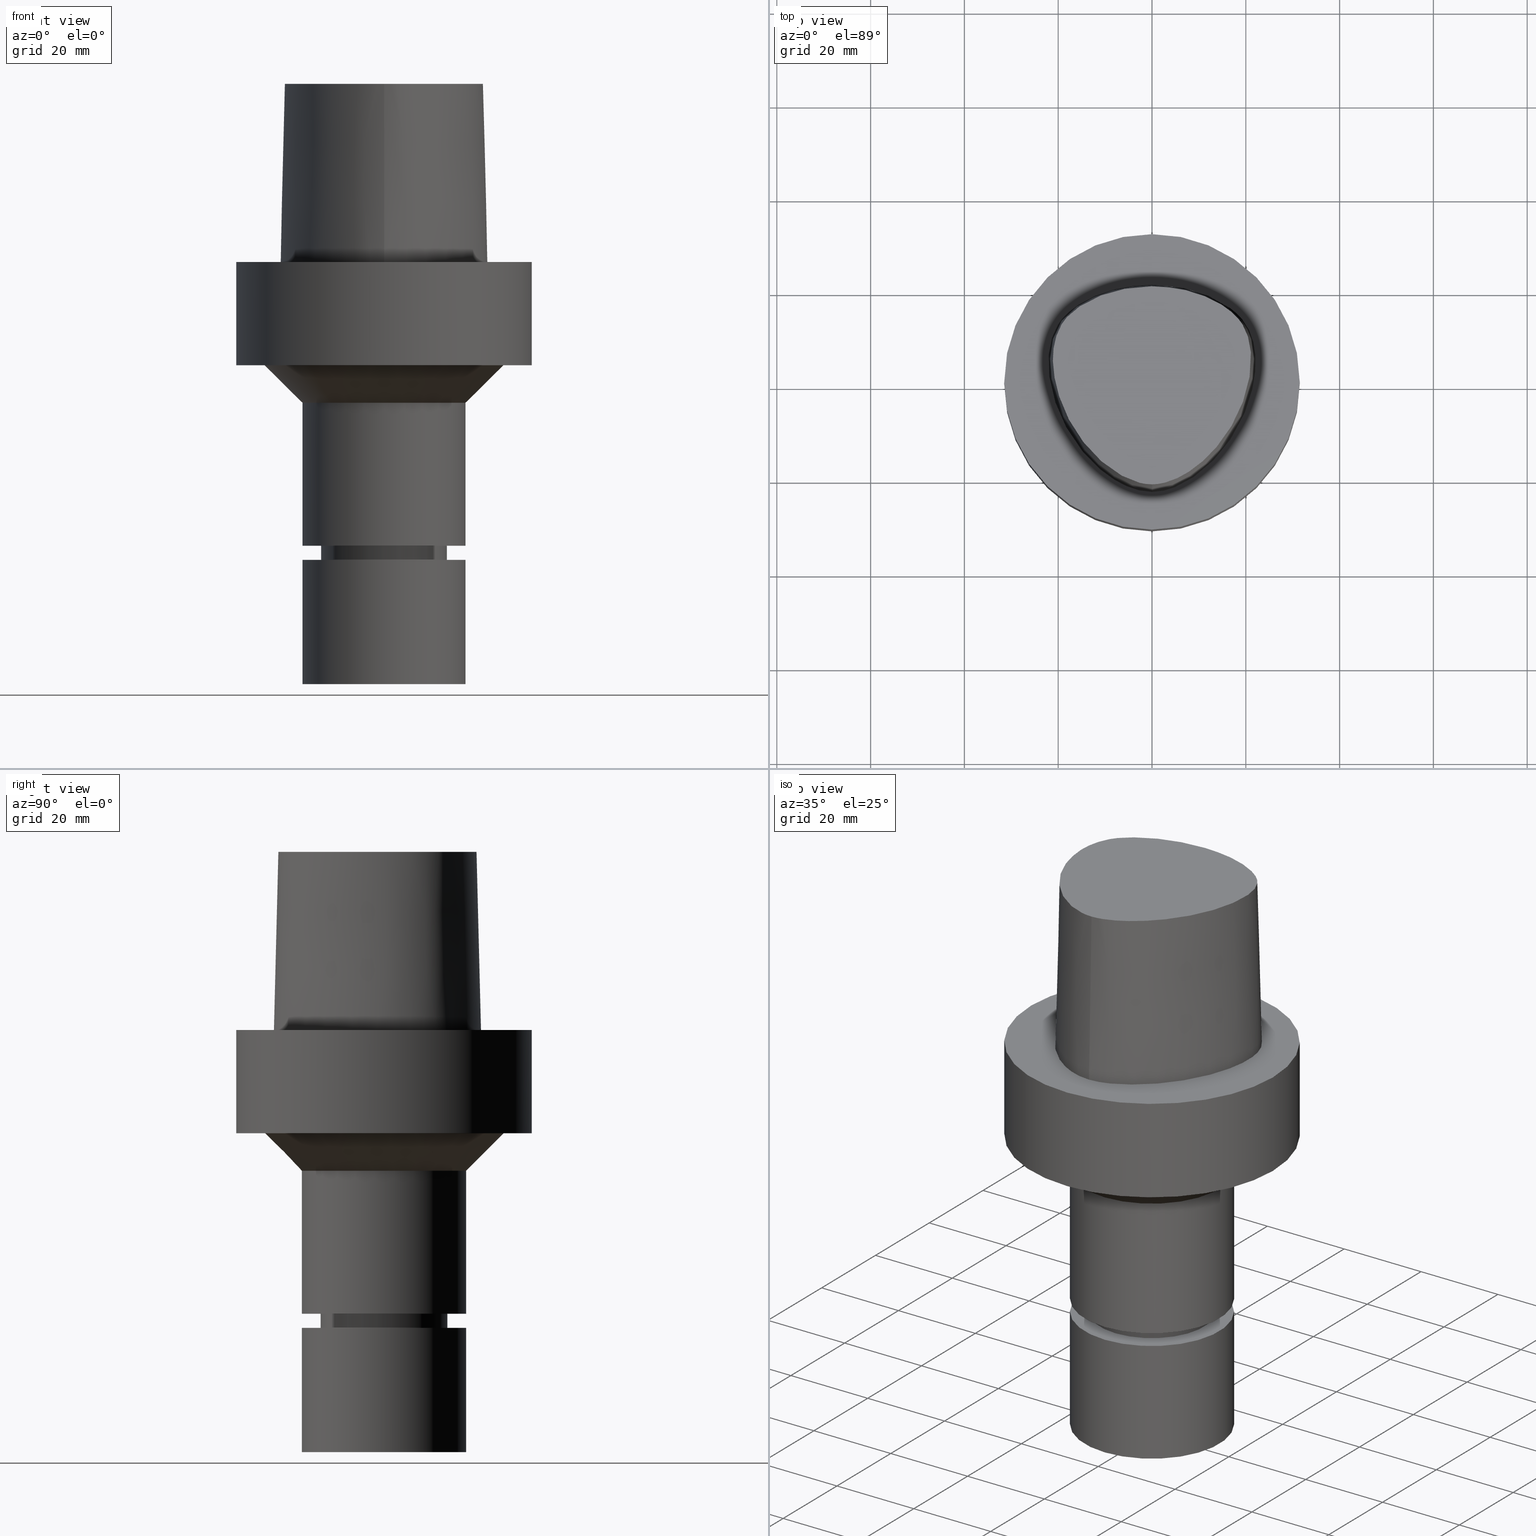
[diagram: canonical four-view strip — front | top / right | iso, engineering-drawing reading convention]
A machine part, canonical four-view strip (front | top / right | iso — engineering-drawing reading convention). The complete STEP part file that produces these views, byte-faithful:
ISO-10303-21;
HEADER;
FILE_DESCRIPTION((''),'1');
FILE_NAME('V:/90_\X2\53D65F9730C730FC30BF\X0\/00_\X2\6DE18DEF30C730FC30BF\X0\/ALL/CAPTO-BKUS\X2\52A05DE556F3\X0\_201801/C6-MEGAER/C6-MEGAER20-90NL.stp','2018-02-01T08:02:23',(''),(''),'Spatial Interop R21 SP3','Kubotek KeyCreator 2011 V10.0.2 (22737)',' ');
FILE_SCHEMA(('automotive_design'));
ENDSEC;
DATA;
#1=MECHANICAL_DESIGN_GEOMETRIC_PRESENTATION_REPRESENTATION(' ',(#14,#15,#16,#17,#18,#19,#20,#21,#22,#23,#24,#25,#26,#27,#28,#29,#30,#31,#32,#33,#34,#35,#36,#37,#38,#39,#40,#41,#42,#43,#44,#45,#46,#47,#48,#49,#50,#51,#52,#53),#10);
#2=PRODUCT_DEFINITION_CONTEXT('',#54,'design');
#3=APPLICATION_PROTOCOL_DEFINITION('INTERNATIONAL STANDARD','automotive_design',1994,#54);
#4=PRODUCT_CATEGORY_RELATIONSHIP('NONE','NONE',#55,#56);
#5=SHAPE_DEFINITION_REPRESENTATION(#57,#58);
#6=PRODUCT_DEFINITION_CONTEXT('',#59,'design');
#7=APPLICATION_PROTOCOL_DEFINITION('INTERNATIONAL STANDARD','automotive_design',1994,#59);
#8=PRODUCT_CATEGORY_RELATIONSHIP('NONE','NONE',#60,#61);
#9=SHAPE_DEFINITION_REPRESENTATION(#62,#63);
#10= (GEOMETRIC_REPRESENTATION_CONTEXT(3)GLOBAL_UNCERTAINTY_ASSIGNED_CONTEXT((#66))GLOBAL_UNIT_ASSIGNED_CONTEXT((#68,#69,#70))REPRESENTATION_CONTEXT('NONE','WORKSPACE'));
#14=STYLED_ITEM('',(#72,#73),#74);
#15=STYLED_ITEM('',(#75),#76);
#16=STYLED_ITEM('',(#77),#78);
#17=STYLED_ITEM('',(#79,#80),#81);
#18=STYLED_ITEM('',(#82),#83);
#19=STYLED_ITEM('',(#84,#85),#86);
#20=STYLED_ITEM('',(#87,#88),#89);
#21=STYLED_ITEM('',(#90),#91);
#22=STYLED_ITEM('',(#92),#93);
#23=STYLED_ITEM('',(#94,#95),#96);
#24=STYLED_ITEM('',(#97),#98);
#25=STYLED_ITEM('',(#99,#100),#101);
#26=STYLED_ITEM('',(#102,#103),#104);
#27=STYLED_ITEM('',(#105,#106),#107);
#28=STYLED_ITEM('',(#108),#109);
#29=STYLED_ITEM('',(#110),#111);
#30=STYLED_ITEM('',(#112),#113);
#31=STYLED_ITEM('',(#114,#115),#116);
#32=STYLED_ITEM('',(#117),#118);
#33=STYLED_ITEM('',(#119),#120);
#34=STYLED_ITEM('',(#121),#122);
#35=STYLED_ITEM('',(#123,#124),#125);
#36=STYLED_ITEM('',(#126),#127);
#37=STYLED_ITEM('',(#128,#129),#130);
#38=STYLED_ITEM('',(#131,#132),#133);
#39=STYLED_ITEM('',(#134),#135);
#40=STYLED_ITEM('',(#136),#137);
#41=STYLED_ITEM('',(#138,#139),#140);
#42=STYLED_ITEM('',(#141),#142);
#43=STYLED_ITEM('',(#143),#144);
#44=STYLED_ITEM('',(#145),#146);
#45=STYLED_ITEM('',(#147),#148);
#46=STYLED_ITEM('',(#149),#150);
#47=STYLED_ITEM('',(#151,#152),#153);
#48=STYLED_ITEM('',(#154,#155),#156);
#49=STYLED_ITEM('',(#157,#158),#159);
#50=STYLED_ITEM('',(#160,#161),#162);
#51=STYLED_ITEM('',(#163,#164),#165);
#52=STYLED_ITEM('',(#166,#167),#168);
#53=STYLED_ITEM('',(#169,#170),#171);
#54=APPLICATION_CONTEXT(' ');
#55=PRODUCT_CATEGORY('part','NONE');
#56=PRODUCT_RELATED_PRODUCT_CATEGORY('detail',' ',(#172));
#57=PRODUCT_DEFINITION_SHAPE('NONE','NONE',#173);
#58=ADVANCED_BREP_SHAPE_REPRESENTATION('Unnamed[1]',(#140,#174),#10);
#59=APPLICATION_CONTEXT(' ');
#60=PRODUCT_CATEGORY('part','NONE');
#61=PRODUCT_RELATED_PRODUCT_CATEGORY('detail',' ',(#175));
#62=PRODUCT_DEFINITION_SHAPE('NONE','NONE',#176);
#63=ADVANCED_BREP_SHAPE_REPRESENTATION('Unnamed[1]',(#130,#177),#10);
#66=UNCERTAINTY_MEASURE_WITH_UNIT(LENGTH_MEASURE(1.0E-006),#68,'','');
#68= (CONVERSION_BASED_UNIT('MILLIMETRE',#180)LENGTH_UNIT()NAMED_UNIT(#183));
#69= (NAMED_UNIT(#185)PLANE_ANGLE_UNIT()SI_UNIT($,.RADIAN.));
#70= (NAMED_UNIT(#185)SOLID_ANGLE_UNIT()SI_UNIT($,.STERADIAN.));
#72=PRESENTATION_STYLE_ASSIGNMENT((#191));
#73=PRESENTATION_STYLE_ASSIGNMENT((#192));
#74=ADVANCED_FACE('Unnamed[1]',(#193,#194),#195,.T.);
#75=PRESENTATION_STYLE_ASSIGNMENT((#196));
#76=EDGE_CURVE('Unnamed[1]',#197,#197,#198,.T.);
#77=PRESENTATION_STYLE_ASSIGNMENT((#199));
#78=EDGE_CURVE('Unnamed[1]',#200,#200,#201,.T.);
#79=PRESENTATION_STYLE_ASSIGNMENT((#202));
#80=PRESENTATION_STYLE_ASSIGNMENT((#203));
#81=ADVANCED_FACE('Unnamed[1]',(#204,#205),#206,.T.);
#82=PRESENTATION_STYLE_ASSIGNMENT((#207));
#83=EDGE_CURVE('Unnamed[1]',#208,#208,#209,.T.);
#84=PRESENTATION_STYLE_ASSIGNMENT((#210));
#85=PRESENTATION_STYLE_ASSIGNMENT((#211));
#86=ADVANCED_FACE('Unnamed[1]',(#212),#213,.T.);
#87=PRESENTATION_STYLE_ASSIGNMENT((#214));
#88=PRESENTATION_STYLE_ASSIGNMENT((#215));
#89=ADVANCED_FACE('Unnamed[1]',(#216,#217),#218,.T.);
#90=PRESENTATION_STYLE_ASSIGNMENT((#219));
#91=EDGE_CURVE('Unnamed[1]',#220,#220,#221,.T.);
#92=PRESENTATION_STYLE_ASSIGNMENT((#222));
#93=EDGE_CURVE('Unnamed[1]',#223,#223,#224,.T.);
#94=PRESENTATION_STYLE_ASSIGNMENT((#225));
#95=PRESENTATION_STYLE_ASSIGNMENT((#226));
#96=ADVANCED_FACE('Unnamed[1]',(#227,#228),#229,.T.);
#97=PRESENTATION_STYLE_ASSIGNMENT((#230));
#98=EDGE_CURVE('Unnamed[1]',#231,#232,#233,.T.);
#99=PRESENTATION_STYLE_ASSIGNMENT((#234));
#100=PRESENTATION_STYLE_ASSIGNMENT((#235));
#101=ADVANCED_FACE('Unnamed[1]',(#236,#237),#238,.T.);
#102=PRESENTATION_STYLE_ASSIGNMENT((#239));
#103=PRESENTATION_STYLE_ASSIGNMENT((#240));
#104=ADVANCED_FACE('Unnamed[1]',(#241,#242),#243,.T.);
#105=PRESENTATION_STYLE_ASSIGNMENT((#244));
#106=PRESENTATION_STYLE_ASSIGNMENT((#245));
#107=ADVANCED_FACE('Unnamed[1]',(#246),#247,.T.);
#108=PRESENTATION_STYLE_ASSIGNMENT((#248));
#109=EDGE_CURVE('Unnamed[1]',#249,#250,#251,.T.);
#110=PRESENTATION_STYLE_ASSIGNMENT((#252));
#111=EDGE_CURVE('Unnamed[1]',#253,#253,#254,.T.);
#112=PRESENTATION_STYLE_ASSIGNMENT((#255));
#113=EDGE_CURVE('Unnamed[1]',#250,#249,#256,.T.);
#114=PRESENTATION_STYLE_ASSIGNMENT((#257));
#115=PRESENTATION_STYLE_ASSIGNMENT((#258));
#116=ADVANCED_FACE('Unnamed[1]',(#259),#260,.T.);
#117=PRESENTATION_STYLE_ASSIGNMENT((#261));
#118=EDGE_CURVE('Unnamed[1]',#262,#262,#263,.T.);
#119=PRESENTATION_STYLE_ASSIGNMENT((#264));
#120=EDGE_CURVE('Unnamed[1]',#265,#265,#266,.T.);
#121=PRESENTATION_STYLE_ASSIGNMENT((#267));
#122=EDGE_CURVE('Unnamed[1]',#249,#268,#269,.T.);
#123=PRESENTATION_STYLE_ASSIGNMENT((#270));
#124=PRESENTATION_STYLE_ASSIGNMENT((#271));
#125=ADVANCED_FACE('Unnamed[1]',(#272),#273,.T.);
#126=PRESENTATION_STYLE_ASSIGNMENT((#274));
#127=EDGE_CURVE('Unnamed[1]',#275,#275,#276,.T.);
#128=PRESENTATION_STYLE_ASSIGNMENT((#277));
#129=PRESENTATION_STYLE_ASSIGNMENT((#278));
#130=MANIFOLD_SOLID_BREP('Unnamed[1]',#279);
#131=PRESENTATION_STYLE_ASSIGNMENT((#280));
#132=PRESENTATION_STYLE_ASSIGNMENT((#281));
#133=ADVANCED_FACE('Unnamed[1]',(#282,#283),#284,.T.);
#134=PRESENTATION_STYLE_ASSIGNMENT((#285));
#135=EDGE_CURVE('Unnamed[1]',#232,#268,#286,.T.);
#136=PRESENTATION_STYLE_ASSIGNMENT((#287));
#137=EDGE_CURVE('Unnamed[1]',#288,#288,#289,.T.);
#138=PRESENTATION_STYLE_ASSIGNMENT((#290));
#139=PRESENTATION_STYLE_ASSIGNMENT((#291));
#140=MANIFOLD_SOLID_BREP('Unnamed[1]',#292);
#141=PRESENTATION_STYLE_ASSIGNMENT((#293));
#142=EDGE_CURVE('Unnamed[1]',#249,#232,#294,.T.);
#143=PRESENTATION_STYLE_ASSIGNMENT((#295));
#144=EDGE_CURVE('Unnamed[1]',#268,#231,#296,.T.);
#145=PRESENTATION_STYLE_ASSIGNMENT((#297));
#146=EDGE_CURVE('Unnamed[1]',#298,#298,#299,.T.);
#147=PRESENTATION_STYLE_ASSIGNMENT((#300));
#148=EDGE_CURVE('Unnamed[1]',#250,#231,#301,.T.);
#149=PRESENTATION_STYLE_ASSIGNMENT((#302));
#150=EDGE_CURVE('Unnamed[1]',#303,#303,#304,.T.);
#151=PRESENTATION_STYLE_ASSIGNMENT((#305));
#152=PRESENTATION_STYLE_ASSIGNMENT((#306));
#153=ADVANCED_FACE('Unnamed[1]',(#307,#308),#309,.T.);
#154=PRESENTATION_STYLE_ASSIGNMENT((#310));
#155=PRESENTATION_STYLE_ASSIGNMENT((#311));
#156=ADVANCED_FACE('Unnamed[1]',(#312),#313,.T.);
#157=PRESENTATION_STYLE_ASSIGNMENT((#314));
#158=PRESENTATION_STYLE_ASSIGNMENT((#315));
#159=ADVANCED_FACE('Unnamed[1]',(#316,#317),#318,.T.);
#160=PRESENTATION_STYLE_ASSIGNMENT((#319));
#161=PRESENTATION_STYLE_ASSIGNMENT((#320));
#162=ADVANCED_FACE('Unnamed[1]',(#321),#322,.T.);
#163=PRESENTATION_STYLE_ASSIGNMENT((#323));
#164=PRESENTATION_STYLE_ASSIGNMENT((#324));
#165=ADVANCED_FACE('Unnamed[1]',(#325,#326),#327,.T.);
#166=PRESENTATION_STYLE_ASSIGNMENT((#328));
#167=PRESENTATION_STYLE_ASSIGNMENT((#329));
#168=ADVANCED_FACE('Unnamed[1]',(#330,#331),#332,.T.);
#169=PRESENTATION_STYLE_ASSIGNMENT((#333));
#170=PRESENTATION_STYLE_ASSIGNMENT((#334));
#171=ADVANCED_FACE('Unnamed[1]',(#335),#336,.T.);
#172=PRODUCT('Unnamed[1]','Unnamed[1]','PART-Unnamed[1]-DESC',(#337));
#173=PRODUCT_DEFINITION('NONE','NONE',#338,#2);
#174=AXIS2_PLACEMENT_3D('',#339,#340,#341);
#175=PRODUCT('Unnamed[1]','Unnamed[1]','PART-Unnamed[1]-DESC',(#342));
#176=PRODUCT_DEFINITION('NONE','NONE',#343,#6);
#177=AXIS2_PLACEMENT_3D('',#344,#345,#346);
#180=LENGTH_MEASURE_WITH_UNIT(LENGTH_MEASURE(1.0),#347);
#183=DIMENSIONAL_EXPONENTS(1.0,0.0,0.0,0.0,0.0,0.0,0.0);
#185=DIMENSIONAL_EXPONENTS(0.0,0.0,0.0,0.0,0.0,0.0,0.0);
#191=SURFACE_STYLE_USAGE(.BOTH.,#348);
#192=CURVE_STYLE('',#349,POSITIVE_LENGTH_MEASURE(1000.0),#350);
#193=FACE_BOUND('',#351,.T.);
#194=FACE_BOUND('',#352,.T.);
#195=CYLINDRICAL_SURFACE('',#353,13.4999999999956);
#196=CURVE_STYLE('',#354,POSITIVE_LENGTH_MEASURE(1000.0),#355);
#197=VERTEX_POINT('',#356);
#198=CIRCLE('',#357,12.4999999999998);
#199=CURVE_STYLE('',#358,POSITIVE_LENGTH_MEASURE(1000.0),#359);
#200=VERTEX_POINT('',#360);
#201=CIRCLE('',#361,17.5);
#202=SURFACE_STYLE_USAGE(.BOTH.,#362);
#203=CURVE_STYLE('',#363,POSITIVE_LENGTH_MEASURE(1000.0),#364);
#204=FACE_BOUND('',#365,.T.);
#205=FACE_BOUND('',#366,.T.);
#206=CYLINDRICAL_SURFACE('',#367,12.4999999999999);
#207=CURVE_STYLE('',#368,POSITIVE_LENGTH_MEASURE(1000.0),#369);
#208=VERTEX_POINT('',#370);
#209=CIRCLE('',#371,17.5);
#210=SURFACE_STYLE_USAGE(.BOTH.,#372);
#211=CURVE_STYLE('',#373,POSITIVE_LENGTH_MEASURE(1000.0),#374);
#212=FACE_OUTER_BOUND('',#375,.T.);
#213=PLANE('',#376);
#214=SURFACE_STYLE_USAGE(.BOTH.,#377);
#215=CURVE_STYLE('',#378,POSITIVE_LENGTH_MEASURE(1000.0),#379);
#216=FACE_BOUND('',#380,.T.);
#217=FACE_BOUND('',#381,.T.);
#218=CYLINDRICAL_SURFACE('',#382,31.5);
#219=CURVE_STYLE('',#383,POSITIVE_LENGTH_MEASURE(1000.0),#384);
#220=VERTEX_POINT('',#385);
#221=CIRCLE('',#386,11.3999999999978);
#222=CURVE_STYLE('',#387,POSITIVE_LENGTH_MEASURE(1000.0),#388);
#223=VERTEX_POINT('',#389);
#224=CIRCLE('',#390,17.4999999999996);
#225=SURFACE_STYLE_USAGE(.BOTH.,#391);
#226=CURVE_STYLE('',#392,POSITIVE_LENGTH_MEASURE(1000.0),#393);
#227=FACE_BOUND('',#394,.T.);
#228=FACE_BOUND('',#395,.T.);
#229=CONICAL_SURFACE('',#396,13.0000000000002,1.04719755119483);
#230=CURVE_STYLE('',#397,POSITIVE_LENGTH_MEASURE(1000.0),#398);
#231=VERTEX_POINT('',#399);
#232=VERTEX_POINT('',#400);
#233=B_SPLINE_CURVE_WITH_KNOTS('',3,(#401,#402,#403,#404,#405,#406,#407,#408,#409,#410,#411,#412,#413,#414,#415,#416,#417,#418),.UNSPECIFIED.,.F.,.F.,(4,1,1,1,1,1,1,1,1,2,1,1,1,1,4),(-6.6151339308743,-6.20168806019465,-5.78824218951501,-5.37479631883537,-4.96135044815572,-4.13445870679644,-3.30756696543715,-2.89412109475751,-2.48067522407786,-2.06722935339822,-1.65378348271857,-1.24033761203893,-0.826891741359287,-0.413445870679644,0.0),.UNSPECIFIED.);
#234=SURFACE_STYLE_USAGE(.BOTH.,#419);
#235=CURVE_STYLE('',#420,POSITIVE_LENGTH_MEASURE(1000.0),#421);
#236=FACE_BOUND('',#422,.T.);
#237=FACE_BOUND('',#423,.T.);
#238=CONICAL_SURFACE('',#424,11.9499999999988,0.523598775598659);
#239=SURFACE_STYLE_USAGE(.BOTH.,#425);
#240=CURVE_STYLE('',#426,POSITIVE_LENGTH_MEASURE(1000.0),#427);
#241=FACE_BOUND('',#428,.T.);
#242=FACE_OUTER_BOUND('',#429,.T.);
#243=PLANE('',#430);
#244=SURFACE_STYLE_USAGE(.BOTH.,#431);
#245=CURVE_STYLE('',#432,POSITIVE_LENGTH_MEASURE(1000.0),#433);
#246=FACE_OUTER_BOUND('',#434,.T.);
#247=B_SPLINE_SURFACE_WITH_KNOTS('',3,3,((#435,#436,#437,#438),(#439,#440,#441,#442),(#443,#444,#445,#446),(#447,#448,#449,#450),(#451,#452,#453,#454),(#455,#456,#457,#458),(#459,#460,#461,#462),(#463,#464,#465,#466),(#467,#468,#469,#470),(#471,#472,#473,#474),(#475,#476,#477,#478),(#479,#480,#481,#482),(#483,#484,#485,#486),(#487,#488,#489,#490),(#491,#492,#493,#494),(#495,#496,#497,#498),(#499,#500,#501,#502),(#503,#504,#505,#506)),.UNSPECIFIED.,.F.,.F.,.F.,(4,1,1,1,1,1,1,1,1,2,1,1,1,1,4),(4,4),(-6.6151339308743,-6.20168806019465,-5.78824218951501,-5.37479631883537,-4.96135044815572,-4.13445870679644,-3.30756696543715,-2.89412109475751,-2.48067522407786,-2.06722935339822,-1.65378348271857,-1.24033761203893,-0.826891741359287,-0.413445870679644,0.0),(-3.8,0.0),.UNSPECIFIED.);
#248=CURVE_STYLE('',#507,POSITIVE_LENGTH_MEASURE(1000.0),#508);
#249=VERTEX_POINT('',#509);
#250=VERTEX_POINT('',#510);
#251=B_SPLINE_CURVE_WITH_KNOTS('',3,(#511,#512,#513,#514,#515,#516,#517,#518,#519,#520,#521,#522,#523,#524,#525,#526),.UNSPECIFIED.,.F.,.F.,(4,1,1,1,1,1,1,1,1,1,1,1,1,4),(0.0,0.447924670568964,0.9388024242536,1.50591409090711,2.07314340012323,2.72424957442464,3.2253501842849,3.80982102049476,4.34867996267067,4.85900173381144,5.37972031856977,6.03459825488646,6.61113557741484,6.61513393087395),.UNSPECIFIED.);
#252=CURVE_STYLE('',#527,POSITIVE_LENGTH_MEASURE(1000.0),#528);
#253=VERTEX_POINT('',#529);
#254=CIRCLE('',#530,17.4999999999998);
#255=CURVE_STYLE('',#531,POSITIVE_LENGTH_MEASURE(1000.0),#532);
#256=B_SPLINE_CURVE_WITH_KNOTS('',3,(#533,#534,#535,#536,#537,#538,#539,#540,#541,#542,#543,#544,#545,#546,#547,#548),.UNSPECIFIED.,.F.,.F.,(4,1,1,1,1,1,1,1,1,1,1,1,1,4),(6.61513393087476,6.99917207152274,7.48193246986995,7.96289324787093,8.45540287038584,9.10291653679981,9.67129810936083,10.1618749681153,10.6358867802489,11.1080734988593,11.6043706019633,12.09451993853,12.6985979284494,13.2302678617486),.UNSPECIFIED.);
#257=SURFACE_STYLE_USAGE(.BOTH.,#549);
#258=CURVE_STYLE('',#550,POSITIVE_LENGTH_MEASURE(1000.0),#551);
#259=FACE_OUTER_BOUND('',#552,.T.);
#260=PLANE('',#553);
#261=CURVE_STYLE('',#554,POSITIVE_LENGTH_MEASURE(1000.0),#555);
#262=VERTEX_POINT('',#556);
#263=CIRCLE('',#557,25.4999999999996);
#264=CURVE_STYLE('',#558,POSITIVE_LENGTH_MEASURE(1000.0),#559);
#265=VERTEX_POINT('',#560);
#266=CIRCLE('',#561,13.5000000000005);
#267=CURVE_STYLE('',#562,POSITIVE_LENGTH_MEASURE(1000.0),#563);
#268=VERTEX_POINT('',#564);
#269=LINE('',#565,#566);
#270=SURFACE_STYLE_USAGE(.BOTH.,#567);
#271=CURVE_STYLE('',#568,POSITIVE_LENGTH_MEASURE(1000.0),#569);
#272=FACE_OUTER_BOUND('',#570,.T.);
#273=CONICAL_SURFACE('',#571,1.0,0.0249931148600041);
#274=CURVE_STYLE('',#572,POSITIVE_LENGTH_MEASURE(1000.0),#573);
#275=VERTEX_POINT('',#574);
#276=CIRCLE('',#575,31.5);
#277=SURFACE_STYLE_USAGE(.BOTH.,#576);
#278=CURVE_STYLE('',#577,POSITIVE_LENGTH_MEASURE(1000.0),#578);
#279=CLOSED_SHELL('',(#86,#171,#133));
#280=SURFACE_STYLE_USAGE(.BOTH.,#579);
#281=CURVE_STYLE('',#580,POSITIVE_LENGTH_MEASURE(1000.0),#581);
#282=FACE_BOUND('',#582,.T.);
#283=FACE_BOUND('',#583,.T.);
#284=CYLINDRICAL_SURFACE('',#584,17.5);
#285=CURVE_STYLE('',#585,POSITIVE_LENGTH_MEASURE(1000.0),#586);
#286=CIRCLE('',#587,0.949936168436318);
#287=CURVE_STYLE('',#588,POSITIVE_LENGTH_MEASURE(1000.0),#589);
#288=VERTEX_POINT('',#590);
#289=CIRCLE('',#591,13.4999999999908);
#290=SURFACE_STYLE_USAGE(.BOTH.,#592);
#291=CURVE_STYLE('',#593,POSITIVE_LENGTH_MEASURE(1000.0),#594);
#292=CLOSED_SHELL('',(#162,#107,#125,#156,#153,#89,#165,#159,#168,#104,#74,#96,#81,#101,#116));
#293=CURVE_STYLE('',#595,POSITIVE_LENGTH_MEASURE(1000.0),#596);
#294=LINE('',#597,#598);
#295=CURVE_STYLE('',#599,POSITIVE_LENGTH_MEASURE(1000.0),#600);
#296=B_SPLINE_CURVE_WITH_KNOTS('',3,(#601,#602,#603,#604,#605,#606,#607,#608,#609,#610,#611,#612,#613,#614,#615,#616,#617),.UNSPECIFIED.,.F.,.F.,(4,1,1,1,1,1,1,1,1,1,1,1,1,1,4),(-13.2302678617486,-12.816821991069,-12.4033761203893,-11.9899302497097,-11.57648437903,-11.1630385083504,-10.9563155730106,-10.7495926376707,-10.3361467669911,-9.92270089631145,-9.09580915495216,-8.26891741359287,-7.44202567223358,-7.02857980155394,-6.6151339308743),.UNSPECIFIED.);
#297=CURVE_STYLE('',#618,POSITIVE_LENGTH_MEASURE(1000.0),#619);
#298=VERTEX_POINT('',#620);
#299=CIRCLE('',#621,31.5);
#300=CURVE_STYLE('',#622,POSITIVE_LENGTH_MEASURE(1000.0),#623);
#301=LINE('',#624,#625);
#302=CURVE_STYLE('',#626,POSITIVE_LENGTH_MEASURE(1000.0),#627);
#303=VERTEX_POINT('',#628);
#304=CIRCLE('',#629,12.4999999999999);
#305=SURFACE_STYLE_USAGE(.BOTH.,#630);
#306=CURVE_STYLE('',#631,POSITIVE_LENGTH_MEASURE(1000.0),#632);
#307=FACE_BOUND('',#633,.T.);
#308=FACE_OUTER_BOUND('',#634,.T.);
#309=PLANE('',#635);
#310=SURFACE_STYLE_USAGE(.BOTH.,#636);
#311=CURVE_STYLE('',#637,POSITIVE_LENGTH_MEASURE(1000.0),#638);
#312=FACE_OUTER_BOUND('',#639,.T.);
#313=PLANE('',#640);
#314=SURFACE_STYLE_USAGE(.BOTH.,#641);
#315=CURVE_STYLE('',#642,POSITIVE_LENGTH_MEASURE(1000.0),#643);
#316=FACE_BOUND('',#644,.T.);
#317=FACE_BOUND('',#645,.T.);
#318=CONICAL_SURFACE('',#646,21.4999999999997,0.785398163397438);
#319=SURFACE_STYLE_USAGE(.BOTH.,#647);
#320=CURVE_STYLE('',#648,POSITIVE_LENGTH_MEASURE(1000.0),#649);
#321=FACE_OUTER_BOUND('',#650,.T.);
#322=B_SPLINE_SURFACE_WITH_KNOTS('',3,3,((#651,#652,#653,#654),(#655,#656,#657,#658),(#659,#660,#661,#662),(#663,#664,#665,#666),(#667,#668,#669,#670),(#671,#672,#673,#674),(#675,#676,#677,#678),(#679,#680,#681,#682),(#683,#684,#685,#686),(#687,#688,#689,#690),(#691,#692,#693,#694),(#695,#696,#697,#698),(#699,#700,#701,#702),(#703,#704,#705,#706),(#707,#708,#709,#710),(#711,#712,#713,#714),(#715,#716,#717,#718)),.UNSPECIFIED.,.F.,.F.,.F.,(4,1,1,1,1,1,1,1,1,1,1,1,1,1,4),(4,4),(-13.2302678617486,-12.816821991069,-12.4033761203893,-11.9899302497097,-11.57648437903,-11.1630385083504,-10.9563155730106,-10.7495926376707,-10.3361467669911,-9.92270089631145,-9.09580915495216,-8.26891741359287,-7.44202567223358,-7.02857980155394,-6.6151339308743),(-3.8,0.0),.UNSPECIFIED.);
#323=SURFACE_STYLE_USAGE(.BOTH.,#719);
#324=CURVE_STYLE('',#720,POSITIVE_LENGTH_MEASURE(1000.0),#721);
#325=FACE_BOUND('',#722,.T.);
#326=FACE_OUTER_BOUND('',#723,.T.);
#327=PLANE('',#724);
#328=SURFACE_STYLE_USAGE(.BOTH.,#725);
#329=CURVE_STYLE('',#726,POSITIVE_LENGTH_MEASURE(1000.0),#727);
#330=FACE_BOUND('',#728,.T.);
#331=FACE_BOUND('',#729,.T.);
#332=CYLINDRICAL_SURFACE('',#730,17.4999999999997);
#333=SURFACE_STYLE_USAGE(.BOTH.,#731);
#334=CURVE_STYLE('',#732,POSITIVE_LENGTH_MEASURE(1000.0),#733);
#335=FACE_OUTER_BOUND('',#734,.T.);
#336=PLANE('',#735);
#337=PRODUCT_CONTEXT('',#54,'mechanical');
#338=PRODUCT_DEFINITION_FORMATION_WITH_SPECIFIED_SOURCE(' ','NONE',#172,.NOT_KNOWN.);
#339=CARTESIAN_POINT('',(0.0,0.0,0.0));
#340=DIRECTION('',(0.0,0.0,1.0));
#341=DIRECTION('',(1.0,0.0,0.0));
#342=PRODUCT_CONTEXT('',#59,'mechanical');
#343=PRODUCT_DEFINITION_FORMATION_WITH_SPECIFIED_SOURCE(' ','NONE',#175,.NOT_KNOWN.);
#344=CARTESIAN_POINT('',(0.0,0.0,0.0));
#345=DIRECTION('',(0.0,0.0,1.0));
#346=DIRECTION('',(1.0,0.0,0.0));
#347= (NAMED_UNIT(#183)LENGTH_UNIT()SI_UNIT(.MILLI.,.METRE.));
#348=SURFACE_SIDE_STYLE('',(#737));
#349=DRAUGHTING_PRE_DEFINED_CURVE_FONT('continuous');
#350=COLOUR_RGB('',0.0,1.0,0.0);
#351=EDGE_LOOP('',(#738));
#352=EDGE_LOOP('',(#739));
#353=AXIS2_PLACEMENT_3D('',#740,#741,#742);
#354=DRAUGHTING_PRE_DEFINED_CURVE_FONT('continuous');
#355=COLOUR_RGB('',0.0,1.0,0.0);
#356=CARTESIAN_POINT('',(4.79417038832104E-015,12.4999999999998,-78.2947441116725));
#357=AXIS2_PLACEMENT_3D('',#743,#744,#745);
#358=DRAUGHTING_PRE_DEFINED_CURVE_FONT('continuous');
#359=COLOUR_RGB('',0.0,1.0,0.0);
#360=CARTESIAN_POINT('',(3.88825452162421E-015,17.5,-63.5000152587891));
#361=AXIS2_PLACEMENT_3D('',#746,#747,#748);
#362=SURFACE_SIDE_STYLE('',(#749));
#363=DRAUGHTING_PRE_DEFINED_CURVE_FONT('continuous');
#364=COLOUR_RGB('',0.0,1.0,0.0);
#365=EDGE_LOOP('',(#750));
#366=EDGE_LOOP('',(#751));
#367=AXIS2_PLACEMENT_3D('',#752,#753,#754);
#368=DRAUGHTING_PRE_DEFINED_CURVE_FONT('continuous');
#369=COLOUR_RGB('',0.0,1.0,0.0);
#370=CARTESIAN_POINT('',(5.51091059616309E-015,17.5,-89.9999999999999));
#371=AXIS2_PLACEMENT_3D('',#755,#756,#757);
#372=SURFACE_SIDE_STYLE('',(#758));
#373=DRAUGHTING_PRE_DEFINED_CURVE_FONT('continuous');
#374=COLOUR_RGB('',0.0,1.0,0.0);
#375=EDGE_LOOP('',(#759));
#376=AXIS2_PLACEMENT_3D('',#760,#761,#762);
#377=SURFACE_SIDE_STYLE('',(#763));
#378=DRAUGHTING_PRE_DEFINED_CURVE_FONT('continuous');
#379=COLOUR_RGB('',0.0,1.0,0.0);
#380=EDGE_LOOP('',(#764));
#381=EDGE_LOOP('',(#765));
#382=AXIS2_PLACEMENT_3D('',#766,#767,#768);
#383=DRAUGHTING_PRE_DEFINED_CURVE_FONT('continuous');
#384=COLOUR_RGB('',0.0,1.0,0.0);
#385=CARTESIAN_POINT('',(4.9108336645809E-015,11.3999999999978,-80.2000000000003));
#386=AXIS2_PLACEMENT_3D('',#769,#770,#771);
#387=DRAUGHTING_PRE_DEFINED_CURVE_FONT('continuous');
#388=COLOUR_RGB('',0.0,1.0,0.0);
#389=CARTESIAN_POINT('',(3.70455656742073E-015,17.4999999999997,-60.4999999999998));
#390=AXIS2_PLACEMENT_3D('',#772,#773,#774);
#391=SURFACE_SIDE_STYLE('',(#775));
#392=DRAUGHTING_PRE_DEFINED_CURVE_FONT('continuous');
#393=COLOUR_RGB('',0.0,1.0,0.0);
#394=EDGE_LOOP('',(#776));
#395=EDGE_LOOP('',(#777));
#396=AXIS2_PLACEMENT_3D('',#778,#779,#780);
#397=DRAUGHTING_PRE_DEFINED_CURVE_FONT('continuous');
#398=COLOUR_RGB('',0.0,1.0,0.0);
#399=CARTESIAN_POINT('',(0.04359356758149,-23.4691235068931,7.78075697532443E-032));
#400=CARTESIAN_POINT('',(-0.045171994691285,20.6766009553285,1.6755590516169E-031));
#401=CARTESIAN_POINT('',(0.04359356758149,-23.4691235068931,7.78075697532443E-032));
#402=CARTESIAN_POINT('',(-1.4714994713963,-23.4767895315797,2.46519032881566E-032));
#403=CARTESIAN_POINT('',(-4.43923476371401,-22.821149804767,-4.93038065763132E-032));
#404=CARTESIAN_POINT('',(-8.35043230079961,-20.8000751253325,-9.86076131526265E-032));
#405=CARTESIAN_POINT('',(-11.744900222602,-18.1556117874078,-1.97215226305253E-031));
#406=CARTESIAN_POINT('',(-15.6989602501314,-14.0406306929147,-1.97215226305253E-031));
#407=CARTESIAN_POINT('',(-19.5352875070682,-8.00624990770787,1.97215226305253E-031));
#408=CARTESIAN_POINT('',(-21.7205626190491,-1.16081708945282,0.0));
#409=CARTESIAN_POINT('',(-22.2486616783342,4.54965558738736,0.0));
#410=CARTESIAN_POINT('',(-21.6646421256468,9.00229539124618,0.0));
#411=CARTESIAN_POINT('',(-20.3945635471922,11.7780544971003,0.0));
#412=CARTESIAN_POINT('',(-18.5925528034471,14.1980602922581,0.0));
#413=CARTESIAN_POINT('',(-16.3226584122258,16.1777748720707,0.0));
#414=CARTESIAN_POINT('',(-12.5076407874579,18.2524201541303,9.86076131526265E-032));
#415=CARTESIAN_POINT('',(-8.46776192107786,19.679114377952,9.86076131526265E-032));
#416=CARTESIAN_POINT('',(-4.23043497193604,20.487781597334,1.97215226305253E-031));
#417=CARTESIAN_POINT('',(-1.42313094248379,20.6127745766442,1.10933564796705E-031));
#418=CARTESIAN_POINT('',(-0.045171994691285,20.6766009553285,1.6755590516169E-031));
#419=SURFACE_SIDE_STYLE('',(#781));
#420=DRAUGHTING_PRE_DEFINED_CURVE_FONT('continuous');
#421=COLOUR_RGB('',0.0,1.0,0.0);
#422=EDGE_LOOP('',(#782));
#423=EDGE_LOOP('',(#783));
#424=AXIS2_PLACEMENT_3D('',#784,#785,#786);
#425=SURFACE_SIDE_STYLE('',(#787));
#426=DRAUGHTING_PRE_DEFINED_CURVE_FONT('continuous');
#427=COLOUR_RGB('',0.0,1.0,0.0);
#428=EDGE_LOOP('',(#788));
#429=EDGE_LOOP('',(#789));
#430=AXIS2_PLACEMENT_3D('',#790,#791,#792);
#431=SURFACE_SIDE_STYLE('',(#793));
#432=DRAUGHTING_PRE_DEFINED_CURVE_FONT('continuous');
#433=COLOUR_RGB('',0.0,1.0,0.0);
#434=EDGE_LOOP('',(#794,#795,#796,#797));
#435=CARTESIAN_POINT('',(0.038736923393866,-22.5191997536361,38.0));
#436=CARTESIAN_POINT('',(0.04035580478973,-22.8358410047159,25.3333333333066));
#437=CARTESIAN_POINT('',(0.041974686185626,-23.1524822558133,12.6666666666934));
#438=CARTESIAN_POINT('',(0.04359356758149,-23.4691235068931,7.78075697532443E-032));
#439=CARTESIAN_POINT('',(-1.33786123484754,-22.5261650259856,38.0));
#440=CARTESIAN_POINT('',(-1.38240731367927,-22.8430399310626,25.3333333333066));
#441=CARTESIAN_POINT('',(-1.42695339249092,-23.1599147815484,12.6666666666934));
#442=CARTESIAN_POINT('',(-1.4714994713963,-23.4767895315797,2.46519032881566E-032));
#443=CARTESIAN_POINT('',(-4.08909358431842,-21.9268839879558,38.0));
#444=CARTESIAN_POINT('',(-4.20580731135515,-22.2249725500078,25.3333333333066));
#445=CARTESIAN_POINT('',(-4.32252104640446,-22.5230611651922,12.6666666666934));
#446=CARTESIAN_POINT('',(-4.43923476371401,-22.821149804767,-4.93038065763132E-032));
#447=CARTESIAN_POINT('',(-7.8333083619947,-19.9973514861616,38.0));
#448=CARTESIAN_POINT('',(-8.00568301809614,-20.2649260859405,25.3333333333066));
#449=CARTESIAN_POINT('',(-8.1780576640789,-20.532500564315,12.6666666666934));
#450=CARTESIAN_POINT('',(-8.35043230079961,-20.8000751253325,-9.86076131526265E-032));
#451=CARTESIAN_POINT('',(-11.1035071147626,-17.450554957873,38.0));
#452=CARTESIAN_POINT('',(-11.3173048160562,-17.6855739222454,25.3333333333066));
#453=CARTESIAN_POINT('',(-11.5311025116181,-17.9205928617968,12.6666666666934));
#454=CARTESIAN_POINT('',(-11.744900222602,-18.1556117874078,-1.97215226305253E-031));
#455=CARTESIAN_POINT('',(-14.9379535189057,-13.461132049697,38.0));
#456=CARTESIAN_POINT('',(-15.191622410671,-13.6542981711372,25.3333333333066));
#457=CARTESIAN_POINT('',(-15.4452913389853,-13.8474645327131,12.6666666666934));
#458=CARTESIAN_POINT('',(-15.6989602501314,-14.0406306929147,-1.97215226305253E-031));
#459=CARTESIAN_POINT('',(-18.6681263017223,-7.59391757463204,38.0));
#460=CARTESIAN_POINT('',(-18.9571800800711,-7.73136168081928,25.3333333333066));
#461=CARTESIAN_POINT('',(-19.2462337287194,-7.86880572399774,12.6666666666934));
#462=CARTESIAN_POINT('',(-19.5352875070682,-8.00624990770787,1.97215226305253E-031));
#463=CARTESIAN_POINT('',(-20.7857899858339,-0.952862819790525,38.0));
#464=CARTESIAN_POINT('',(-21.0973808305434,-1.02218087467418,25.3333333333066));
#465=CARTESIAN_POINT('',(-21.408971677436,-1.09149899580772,12.6666666666934));
#466=CARTESIAN_POINT('',(-21.7205626190491,-1.16081708945282,0.0));
#467=CARTESIAN_POINT('',(-21.2911760556836,4.5469215763113,38.0));
#468=CARTESIAN_POINT('',(-21.610337904926,4.54783292082248,25.3333333333066));
#469=CARTESIAN_POINT('',(-21.9294998290918,4.54874426225691,12.6666666666934));
#470=CARTESIAN_POINT('',(-22.2486616783342,4.54965558738736,0.0));
#471=CARTESIAN_POINT('',(-20.7345309521958,8.74909381391006,38.0));
#472=CARTESIAN_POINT('',(-21.0445680426217,8.83349432450556,25.3333333333066));
#473=CARTESIAN_POINT('',(-21.3546050933631,8.91789488065068,12.6666666666934));
#474=CARTESIAN_POINT('',(-21.6646421256468,9.00229539124618,0.0));
#475=CARTESIAN_POINT('',(-19.5531512296439,11.3174844040833,38.0));
#476=CARTESIAN_POINT('',(-19.8336219699984,11.4710077674213,25.3333333333066));
#477=CARTESIAN_POINT('',(-20.1140927680763,11.6245311337623,12.6666666666934));
#478=CARTESIAN_POINT('',(-20.3945635471922,11.7780544971003,0.0));
#479=CARTESIAN_POINT('',(-17.9100913688793,13.524027510437,38.0));
#480=CARTESIAN_POINT('',(-18.1375785458768,13.7487051053655,25.3333333333066));
#481=CARTESIAN_POINT('',(-18.365065665211,13.9733826973296,12.6666666666934));
#482=CARTESIAN_POINT('',(-18.5925528034471,14.1980602922581,0.0));
#483=CARTESIAN_POINT('',(-15.7996349656398,15.3762170634413,38.0));
#484=CARTESIAN_POINT('',(-15.9739761051783,15.6434029846179,25.3333333333066));
#485=CARTESIAN_POINT('',(-16.1483172726872,15.9105889315134,12.6666666666934));
#486=CARTESIAN_POINT('',(-16.3226584122258,16.1777748720707,0.0));
#487=CARTESIAN_POINT('',(-12.1175640002064,17.3825162484012,38.0));
#488=CARTESIAN_POINT('',(-12.2475895903055,17.6724842099619,25.3333333333066));
#489=CARTESIAN_POINT('',(-12.3776152070492,17.9624521925696,12.6666666666934));
#490=CARTESIAN_POINT('',(-12.5076407874579,18.2524201541303,9.86076131526265E-032));
#491=CARTESIAN_POINT('',(-8.21761151654222,18.7588585989994,38.0));
#492=CARTESIAN_POINT('',(-8.30099497910627,19.0656105427881,25.3333333333066));
#493=CARTESIAN_POINT('',(-8.38437843913309,19.3723624535439,12.6666666666934));
#494=CARTESIAN_POINT('',(-8.46776192107786,19.679114377952,9.86076131526265E-032));
#495=CARTESIAN_POINT('',(-4.13466093881225,19.5396850837055,38.0));
#496=CARTESIAN_POINT('',(-4.16658562115465,19.8557172636973,25.3333333333066));
#497=CARTESIAN_POINT('',(-4.19851029939059,20.1717494367229,12.6666666666934));
#498=CARTESIAN_POINT('',(-4.23043497193604,20.487781597334,1.97215226305253E-031));
#499=CARTESIAN_POINT('',(-1.37917220403684,19.6638560588908,38.0));
#500=CARTESIAN_POINT('',(-1.39382511685176,19.98016223565,25.3333333333066));
#501=CARTESIAN_POINT('',(-1.40847802945569,20.296468399885,12.6666666666934));
#502=CARTESIAN_POINT('',(-1.42313094248379,20.6127745766442,1.10933564796705E-031));
#503=CARTESIAN_POINT('',(-0.001218547003662,19.7276821925089,38.0));
#504=CARTESIAN_POINT('',(-0.015869696232855,20.043988446791,25.3333333333066));
#505=CARTESIAN_POINT('',(-0.030520845462092,20.3602947010464,12.6666666666934));
#506=CARTESIAN_POINT('',(-0.045171994691285,20.6766009553285,1.6755590516169E-031));
#507=DRAUGHTING_PRE_DEFINED_CURVE_FONT('continuous');
#508=COLOUR_RGB('',0.0,1.0,0.0);
#509=CARTESIAN_POINT('',(-0.001218547003662,19.7276821925089,38.0));
#510=CARTESIAN_POINT('',(0.038736923393866,-22.5191997536361,38.0));
#511=CARTESIAN_POINT('',(-0.001218547003662,19.7276821925089,38.0));
#512=CARTESIAN_POINT('',(-1.49408492138443,19.6585333605309,38.0));
#513=CARTESIAN_POINT('',(-4.62297391420352,19.513604770166,38.0));
#514=CARTESIAN_POINT('',(-9.56160616752212,18.4291575730197,38.0));
#515=CARTESIAN_POINT('',(-14.5427684976927,16.2697452580488,38.0));
#516=CARTESIAN_POINT('',(-19.4315563551602,12.5302108980807,38.0));
#517=CARTESIAN_POINT('',(-21.306358833612,6.76352894547076,38.0));
#518=CARTESIAN_POINT('',(-21.0724946936277,0.957075236984038,38.0));
#519=CARTESIAN_POINT('',(-19.7876470880144,-4.34628503581652,38.0));
#520=CARTESIAN_POINT('',(-17.5396999600095,-9.33314444653089,38.0));
#521=CARTESIAN_POINT('',(-14.645447733857,-13.7185760345629,38.0));
#522=CARTESIAN_POINT('',(-10.7996726536643,-17.856257282137,38.0));
#523=CARTESIAN_POINT('',(-6.00479510196376,-21.2687382067675,38.0));
#524=CARTESIAN_POINT('',(-1.90747171908525,-22.5250621415864,38.0));
#525=CARTESIAN_POINT('',(0.025424107066464,-22.5192678176378,38.0));
#526=CARTESIAN_POINT('',(0.038736923394311,-22.519199753636,38.0));
#527=DRAUGHTING_PRE_DEFINED_CURVE_FONT('continuous');
#528=COLOUR_RGB('',0.0,1.0,0.0);
#529=CARTESIAN_POINT('',(1.83697019872103E-015,17.4999999999998,-30.0000000000001));
#530=AXIS2_PLACEMENT_3D('',#798,#799,#800);
#531=DRAUGHTING_PRE_DEFINED_CURVE_FONT('continuous');
#532=COLOUR_RGB('',0.0,1.0,0.0);
#533=CARTESIAN_POINT('',(0.038736923394311,-22.519199753636,38.0));
#534=CARTESIAN_POINT('',(1.31742058183662,-22.512662269405,38.0));
#535=CARTESIAN_POINT('',(4.2093773447498,-21.9116226439989,38.0));
#536=CARTESIAN_POINT('',(8.20895504542113,-19.7798683845067,38.0));
#537=CARTESIAN_POINT('',(11.9784633234593,-16.681663904162,38.0));
#538=CARTESIAN_POINT('',(15.5308821579362,-12.5807487594113,38.0));
#539=CARTESIAN_POINT('',(18.4566248438667,-7.64932246015528,38.0));
#540=CARTESIAN_POINT('',(20.4036090752029,-2.27012499825289,38.0));
#541=CARTESIAN_POINT('',(21.2357187429189,2.79891401173156,38.0));
#542=CARTESIAN_POINT('',(21.0811206267748,7.62543090736657,38.0));
#543=CARTESIAN_POINT('',(19.3383577336563,12.2772250726194,38.0));
#544=CARTESIAN_POINT('',(15.5796322014404,15.5799672120682,38.0));
#545=CARTESIAN_POINT('',(10.8392956074438,17.9834601687347,38.0));
#546=CARTESIAN_POINT('',(5.56068045850571,19.4586143858472,38.0));
#547=CARTESIAN_POINT('',(1.77223893711014,19.6418877095654,38.0));
#548=CARTESIAN_POINT('',(-0.001218367817519,19.7276822012873,38.0));
#549=SURFACE_SIDE_STYLE('',(#801));
#550=DRAUGHTING_PRE_DEFINED_CURVE_FONT('continuous');
#551=COLOUR_RGB('',0.0,1.0,0.0);
#552=EDGE_LOOP('',(#802));
#553=AXIS2_PLACEMENT_3D('',#803,#804,#805);
#554=DRAUGHTING_PRE_DEFINED_CURVE_FONT('continuous');
#555=COLOUR_RGB('',0.0,1.0,0.0);
#556=CARTESIAN_POINT('',(1.3471114790621E-015,25.4999999999996,-22.0000000000001));
#557=AXIS2_PLACEMENT_3D('',#806,#807,#808);
#558=DRAUGHTING_PRE_DEFINED_CURVE_FONT('continuous');
#559=COLOUR_RGB('',0.0,1.0,0.0);
#560=CARTESIAN_POINT('',(4.06107114292147E-015,13.5000000000005,-66.3223248654052));
#561=AXIS2_PLACEMENT_3D('',#809,#810,#811);
#562=DRAUGHTING_PRE_DEFINED_CURVE_FONT('continuous');
#563=COLOUR_RGB('',0.0,1.0,0.0);
#564=CARTESIAN_POINT('',(0.044682985379347,20.6765087343109,1.61778115328528E-031));
#565=CARTESIAN_POINT('',(-0.001218547003662,19.7276821925089,38.0));
#566=VECTOR('',#812,38.0118715503078);
#567=SURFACE_SIDE_STYLE('',(#813));
#568=DRAUGHTING_PRE_DEFINED_CURVE_FONT('continuous');
#569=COLOUR_RGB('',0.0,1.0,0.0);
#570=EDGE_LOOP('',(#814,#815,#816));
#571=AXIS2_PLACEMENT_3D('',#817,#818,#819);
#572=DRAUGHTING_PRE_DEFINED_CURVE_FONT('continuous');
#573=COLOUR_RGB('',0.0,1.0,0.0);
#574=CARTESIAN_POINT('',(-3.88267476788467E-031,31.5,3.85763741731416E-015));
#575=AXIS2_PLACEMENT_3D('',#820,#821,#822);
#576=SURFACE_SIDE_STYLE('',(#823));
#577=DRAUGHTING_PRE_DEFINED_CURVE_FONT('continuous');
#578=COLOUR_RGB('',0.0,1.0,0.0);
#579=SURFACE_SIDE_STYLE('',(#824));
#580=DRAUGHTING_PRE_DEFINED_CURVE_FONT('continuous');
#581=COLOUR_RGB('',0.0,1.0,0.0);
#582=EDGE_LOOP('',(#825));
#583=EDGE_LOOP('',(#826));
#584=AXIS2_PLACEMENT_3D('',#827,#828,#829);
#585=DRAUGHTING_PRE_DEFINED_CURVE_FONT('continuous');
#586=COLOUR_RGB('',0.0,1.0,0.0);
#587=AXIS2_PLACEMENT_3D('',#830,#831,#832);
#588=DRAUGHTING_PRE_DEFINED_CURVE_FONT('continuous');
#589=COLOUR_RGB('',0.0,1.0,0.0);
#590=CARTESIAN_POINT('',(3.70455656742073E-015,13.4999999999908,-60.4999999999998));
#591=AXIS2_PLACEMENT_3D('',#833,#834,#835);
#592=SURFACE_SIDE_STYLE('',(#836));
#593=DRAUGHTING_PRE_DEFINED_CURVE_FONT('continuous');
#594=COLOUR_RGB('',0.0,1.0,0.0);
#595=DRAUGHTING_PRE_DEFINED_CURVE_FONT('continuous');
#596=COLOUR_RGB('',0.0,1.0,0.0);
#597=CARTESIAN_POINT('',(-0.001218547003662,19.7276821925089,38.0));
#598=VECTOR('',#837,38.0118715498723);
#599=DRAUGHTING_PRE_DEFINED_CURVE_FONT('continuous');
#600=COLOUR_RGB('',0.0,1.0,0.0);
#601=CARTESIAN_POINT('',(0.044682985379347,20.6765087343109,1.61778115328528E-031));
#602=CARTESIAN_POINT('',(1.42379272427753,20.6097915814392,8.62816615085482E-032));
#603=CARTESIAN_POINT('',(4.2230955003445,20.4837538303966,1.4791141972894E-031));
#604=CARTESIAN_POINT('',(8.47220762821777,19.6890432607088,9.86076131526265E-032));
#605=CARTESIAN_POINT('',(12.5141247708253,18.2434968480404,0.0));
#606=CARTESIAN_POINT('',(16.3038624872874,16.1734192182143,1.97215226305253E-031));
#607=CARTESIAN_POINT('',(19.1446913988473,13.7036723639434,-1.97215226305253E-031));
#608=CARTESIAN_POINT('',(20.7319894342149,11.1014620996188,0.0));
#609=CARTESIAN_POINT('',(21.7831756505763,8.28099229708081,-1.97215226305253E-031));
#610=CARTESIAN_POINT('',(22.2258240701438,4.60865440596506,0.0));
#611=CARTESIAN_POINT('',(21.7436130080666,-1.11326526354485,0.0));
#612=CARTESIAN_POINT('',(19.5519487660502,-7.95432366164584,0.0));
#613=CARTESIAN_POINT('',(14.9574167123838,-15.2089785567293,0.0));
#614=CARTESIAN_POINT('',(9.66840283021945,-20.0827414369705,-9.86076131526265E-032));
#615=CARTESIAN_POINT('',(4.51628650521788,-22.7946374572188,-9.86076131526265E-032));
#616=CARTESIAN_POINT('',(1.55867251738073,-23.4612972770043,-1.23259516440783E-032));
#617=CARTESIAN_POINT('',(0.04359356758149,-23.4691235068931,7.78075697532443E-032));
#618=DRAUGHTING_PRE_DEFINED_CURVE_FONT('continuous');
#619=COLOUR_RGB('',0.0,1.0,0.0);
#620=CARTESIAN_POINT('',(1.34711147906212E-015,31.5,-22.0000000000006));
#621=AXIS2_PLACEMENT_3D('',#838,#839,#840);
#622=DRAUGHTING_PRE_DEFINED_CURVE_FONT('continuous');
#623=COLOUR_RGB('',0.0,1.0,0.0);
#624=CARTESIAN_POINT('',(0.038736923393866,-22.5191997536361,38.0));
#625=VECTOR('',#841,38.0118715498723);
#626=DRAUGHTING_PRE_DEFINED_CURVE_FONT('continuous');
#627=COLOUR_RGB('',0.0,1.0,0.0);
#628=CARTESIAN_POINT('',(4.09642365087913E-015,12.4999999999999,-66.8996751345975));
#629=AXIS2_PLACEMENT_3D('',#842,#843,#844);
#630=SURFACE_SIDE_STYLE('',(#845));
#631=DRAUGHTING_PRE_DEFINED_CURVE_FONT('continuous');
#632=COLOUR_RGB('',0.0,1.0,0.0);
#633=EDGE_LOOP('',(#846,#847,#848));
#634=EDGE_LOOP('',(#849));
#635=AXIS2_PLACEMENT_3D('',#850,#851,#852);
#636=SURFACE_SIDE_STYLE('',(#853));
#637=DRAUGHTING_PRE_DEFINED_CURVE_FONT('continuous');
#638=COLOUR_RGB('',0.0,1.0,0.0);
#639=EDGE_LOOP('',(#854,#855));
#640=AXIS2_PLACEMENT_3D('',#856,#857,#858);
#641=SURFACE_SIDE_STYLE('',(#859));
#642=DRAUGHTING_PRE_DEFINED_CURVE_FONT('continuous');
#643=COLOUR_RGB('',0.0,1.0,0.0);
#644=EDGE_LOOP('',(#860));
#645=EDGE_LOOP('',(#861));
#646=AXIS2_PLACEMENT_3D('',#862,#863,#864);
#647=SURFACE_SIDE_STYLE('',(#865));
#648=DRAUGHTING_PRE_DEFINED_CURVE_FONT('continuous');
#649=COLOUR_RGB('',0.0,1.0,0.0);
#650=EDGE_LOOP('',(#866,#867,#868,#869));
#651=CARTESIAN_POINT('',(-0.001218367817519,19.7276822012873,38.0));
#652=CARTESIAN_POINT('',(0.014082083248157,20.0439577123075,25.3333333333066));
#653=CARTESIAN_POINT('',(0.029382534313671,20.3602332232908,12.6666666666934));
#654=CARTESIAN_POINT('',(0.044682985379347,20.6765087343109,1.61778115328528E-031));
#655=CARTESIAN_POINT('',(1.37788651195108,19.6609652834875,38.0));
#656=CARTESIAN_POINT('',(1.3931885827258,19.9772407169847,25.3333333333066));
#657=CARTESIAN_POINT('',(1.40849065356095,20.2935162254648,12.6666666666934));
#658=CARTESIAN_POINT('',(1.42379272427753,20.6097915814392,8.62816615085482E-032));
#659=CARTESIAN_POINT('',(4.135446440878,19.5347778787784,38.0));
#660=CARTESIAN_POINT('',(4.16466278851883,19.8511031866125,25.3333333333066));
#661=CARTESIAN_POINT('',(4.1938791526746,20.1674284644204,12.6666666666934));
#662=CARTESIAN_POINT('',(4.2230955003445,20.4837538303966,1.4791141972894E-031));
#663=CARTESIAN_POINT('',(8.213607363795,18.7706026638736,38.0));
#664=CARTESIAN_POINT('',(8.29980745008421,19.0767495109635,25.3333333333066));
#665=CARTESIAN_POINT('',(8.38600751285747,19.3828964329996,12.6666666666934));
#666=CARTESIAN_POINT('',(8.47220762821777,19.6890432607088,9.86076131526265E-032));
#667=CARTESIAN_POINT('',(12.1316338645671,17.3698624840857,38.0));
#668=CARTESIAN_POINT('',(12.2591308270381,17.6610739397708,25.3333333333066));
#669=CARTESIAN_POINT('',(12.3866278083543,17.9522853923553,12.6666666666934));
#670=CARTESIAN_POINT('',(12.5141247708253,18.2434968480404,0.0));
#671=CARTESIAN_POINT('',(15.7706546153679,15.3789501349612,38.0));
#672=CARTESIAN_POINT('',(15.9483905900895,15.6437731794811,25.3333333333066));
#673=CARTESIAN_POINT('',(16.1261265513272,15.9085961736944,12.6666666666934));
#674=CARTESIAN_POINT('',(16.3038624872874,16.1734192182143,1.97215226305253E-031));
#675=CARTESIAN_POINT('',(18.4265894256284,13.0570022172893,38.0));
#676=CARTESIAN_POINT('',(18.6659567517146,13.2725589420689,25.3333333333066));
#677=CARTESIAN_POINT('',(18.9053240921419,13.4881156488541,12.6666666666934));
#678=CARTESIAN_POINT('',(19.1446913988473,13.7036723639434,-1.97215226305253E-031));
#679=CARTESIAN_POINT('',(19.8679958653038,10.6923771981998,38.0));
#680=CARTESIAN_POINT('',(20.1559937048299,10.8287388264873,25.3333333333066));
#681=CARTESIAN_POINT('',(20.4439915656177,10.965100461641,12.6666666666934));
#682=CARTESIAN_POINT('',(20.7319894342149,11.1014620996188,0.0));
#683=CARTESIAN_POINT('',(20.8470867582337,8.07149548576131,38.0));
#684=CARTESIAN_POINT('',(21.1591164072431,8.14132775555392,25.3333333333066));
#685=CARTESIAN_POINT('',(21.4711459821861,8.21116003697855,12.6666666666934));
#686=CARTESIAN_POINT('',(21.7831756505763,8.28099229708081,-1.97215226305253E-031));
#687=CARTESIAN_POINT('',(21.2693244256982,4.61157245650171,38.0));
#688=CARTESIAN_POINT('',(21.5881576801997,4.6105997689982,25.3333333333066));
#689=CARTESIAN_POINT('',(21.9069908544037,4.60962709346857,12.6666666666934));
#690=CARTESIAN_POINT('',(22.2258240701438,4.60865440596506,0.0));
#691=CARTESIAN_POINT('',(20.8071610855575,-0.912828649855193,38.0));
#692=CARTESIAN_POINT('',(21.119311671178,-0.979640884839481,25.3333333333066));
#693=CARTESIAN_POINT('',(21.4314624224461,-1.04645306732201,12.6666666666934));
#694=CARTESIAN_POINT('',(21.7436130080666,-1.11326526354485,0.0));
#695=CARTESIAN_POINT('',(18.6841935581315,-7.54428794252837,38.0));
#696=CARTESIAN_POINT('',(18.9734452551861,-7.6809665891091,25.3333333333066));
#697=CARTESIAN_POINT('',(19.2626970689956,-7.81764505382656,12.6666666666934));
#698=CARTESIAN_POINT('',(19.5519487660502,-7.95432366164584,0.0));
#699=CARTESIAN_POINT('',(14.2175552814,-14.5971504342323,38.0));
#700=CARTESIAN_POINT('',(14.4641757465198,-14.8010930946929,25.3333333333066));
#701=CARTESIAN_POINT('',(14.710796247264,-15.0050359737917,12.6666666666934));
#702=CARTESIAN_POINT('',(14.9574167123838,-15.2089785567293,0.0));
#703=CARTESIAN_POINT('',(9.0844808732933,-19.3179298129689,38.0));
#704=CARTESIAN_POINT('',(9.27912152349017,-19.572866915557,25.3333333333066));
#705=CARTESIAN_POINT('',(9.47376218971294,-19.827804295621,12.6666666666934));
#706=CARTESIAN_POINT('',(9.66840283021945,-20.0827414369705,-9.86076131526265E-032));
#707=CARTESIAN_POINT('',(4.17112919194182,-21.8987568152736,38.0));
#708=CARTESIAN_POINT('',(4.28618163483998,-22.1973837173649,25.3333333333066));
#709=CARTESIAN_POINT('',(4.40123406239433,-22.4960105163661,12.6666666666934));
#710=CARTESIAN_POINT('',(4.51628650521788,-22.7946374572188,-9.86076131526265E-032));
#711=CARTESIAN_POINT('',(1.41533654381097,-22.5120888467812,38.0));
#712=CARTESIAN_POINT('',(1.46311520162011,-22.8284916374445,25.3333333333066));
#713=CARTESIAN_POINT('',(1.51089385942236,-23.144894486341,12.6666666666934));
#714=CARTESIAN_POINT('',(1.55867251738073,-23.4612972770043,-1.23259516440783E-032));
#715=CARTESIAN_POINT('',(0.038736923393866,-22.5191997536361,38.0));
#716=CARTESIAN_POINT('',(0.04035580478973,-22.8358410047159,25.3333333333066));
#717=CARTESIAN_POINT('',(0.041974686185626,-23.1524822558133,12.6666666666934));
#718=CARTESIAN_POINT('',(0.04359356758149,-23.4691235068931,7.78075697532443E-032));
#719=SURFACE_SIDE_STYLE('',(#870));
#720=DRAUGHTING_PRE_DEFINED_CURVE_FONT('continuous');
#721=COLOUR_RGB('',0.0,1.0,0.0);
#722=EDGE_LOOP('',(#871));
#723=EDGE_LOOP('',(#872));
#724=AXIS2_PLACEMENT_3D('',#873,#874,#875);
#725=SURFACE_SIDE_STYLE('',(#876));
#726=DRAUGHTING_PRE_DEFINED_CURVE_FONT('continuous');
#727=COLOUR_RGB('',0.0,1.0,0.0);
#728=EDGE_LOOP('',(#877));
#729=EDGE_LOOP('',(#878));
#730=AXIS2_PLACEMENT_3D('',#879,#880,#881);
#731=SURFACE_SIDE_STYLE('',(#882));
#732=DRAUGHTING_PRE_DEFINED_CURVE_FONT('continuous');
#733=COLOUR_RGB('',0.0,1.0,0.0);
#734=EDGE_LOOP('',(#883));
#735=AXIS2_PLACEMENT_3D('',#884,#885,#886);
#737=SURFACE_STYLE_FILL_AREA(#887);
#738=ORIENTED_EDGE('',*,*,#120,.F.);
#739=ORIENTED_EDGE('',*,*,#137,.T.);
#740=CARTESIAN_POINT('',(3.8828138551711E-015,7.7656277103422E-015,-63.4111624327025));
#741=DIRECTION('',(6.12323399573677E-017,1.22464679914735E-016,-1.0));
#742=DIRECTION('',(-1.23259516440783E-032,1.0,1.22464679914735E-016));
#743=CARTESIAN_POINT('',(4.79417038832104E-015,9.58834077664208E-015,-78.2947441116725));
#744=DIRECTION('',(6.12323399573677E-017,1.22464679914735E-016,-1.0));
#745=DIRECTION('',(-1.23259516440783E-032,1.0,1.22464679914735E-016));
#746=CARTESIAN_POINT('',(3.88825452162421E-015,7.77650904324841E-015,-63.5000152587891));
#747=DIRECTION('',(6.12323399573677E-017,1.22464679914735E-016,-1.0));
#748=DIRECTION('',(-1.23259516440783E-032,1.0,1.22464679914735E-016));
#749=SURFACE_STYLE_FILL_AREA(#888);
#750=ORIENTED_EDGE('',*,*,#76,.F.);
#751=ORIENTED_EDGE('',*,*,#150,.T.);
#752=CARTESIAN_POINT('',(4.44529701960009E-015,8.89059403920017E-015,-72.597209623135));
#753=DIRECTION('',(6.12323399573677E-017,1.22464679914735E-016,-1.0));
#754=DIRECTION('',(-1.23259516440783E-032,1.0,1.22464679914735E-016));
#755=CARTESIAN_POINT('',(5.51091059616309E-015,1.10218211923262E-014,-89.9999999999999));
#756=DIRECTION('',(6.12323399573677E-017,1.22464679914735E-016,-1.0));
#757=DIRECTION('',(-1.23259516440783E-032,1.0,1.22464679914735E-016));
#758=SURFACE_STYLE_FILL_AREA(#889);
#759=ORIENTED_EDGE('',*,*,#83,.T.);
#760=CARTESIAN_POINT('',(5.51091059616309E-015,8.75000000000002,-89.9999999999999));
#761=DIRECTION('',(6.12323399573677E-017,1.22464679914735E-016,-1.0));
#762=DIRECTION('',(-1.23259516440783E-032,1.0,1.22464679914735E-016));
#763=SURFACE_STYLE_FILL_AREA(#890);
#764=ORIENTED_EDGE('',*,*,#146,.F.);
#765=ORIENTED_EDGE('',*,*,#127,.T.);
#766=CARTESIAN_POINT('',(6.73555739531062E-016,1.34711147906212E-015,-11.0000000000003));
#767=DIRECTION('',(6.12323399573677E-017,1.22464679914735E-016,-1.0));
#768=DIRECTION('',(-1.23259516440783E-032,1.0,1.22464679914735E-016));
#769=CARTESIAN_POINT('',(4.9108336645809E-015,9.8216673291618E-015,-80.2000000000003));
#770=DIRECTION('',(6.12323399573676E-017,1.22464679914735E-016,-1.0));
#771=DIRECTION('',(-1.23259516440783E-032,1.0,1.22464679914735E-016));
#772=CARTESIAN_POINT('',(3.70455656742073E-015,7.40911313484146E-015,-60.4999999999998));
#773=DIRECTION('',(6.12323399573677E-017,1.22464679914735E-016,-1.0));
#774=DIRECTION('',(-1.23259516440783E-032,1.0,1.22464679914735E-016));
#775=SURFACE_STYLE_FILL_AREA(#891);
#776=ORIENTED_EDGE('',*,*,#150,.F.);
#777=ORIENTED_EDGE('',*,*,#120,.T.);
#778=CARTESIAN_POINT('',(4.0787473969003E-015,8.1574947938006E-015,-66.6110000000014));
#779=DIRECTION('',(-6.12323399573677E-017,-1.22464679914735E-016,1.0));
#780=DIRECTION('',(-1.23259516440783E-032,1.0,1.22464679914735E-016));
#781=SURFACE_STYLE_FILL_AREA(#892);
#782=ORIENTED_EDGE('',*,*,#91,.F.);
#783=ORIENTED_EDGE('',*,*,#76,.T.);
#784=CARTESIAN_POINT('',(4.85250202645097E-015,9.70500405290194E-015,-79.2473720558364));
#785=DIRECTION('',(-6.12323399573677E-017,-1.22464679914735E-016,1.0));
#786=DIRECTION('',(-1.23259516440783E-032,1.0,1.22464679914735E-016));
#787=SURFACE_STYLE_FILL_AREA(#893);
#788=ORIENTED_EDGE('',*,*,#137,.F.);
#789=ORIENTED_EDGE('',*,*,#93,.T.);
#790=CARTESIAN_POINT('',(3.70455656742073E-015,15.4999999999952,-60.4999999999998));
#791=DIRECTION('',(6.12323399573677E-017,1.22464679914735E-016,-1.0));
#792=DIRECTION('',(-1.23259516440783E-032,1.0,1.22464679914735E-016));
#793=SURFACE_STYLE_FILL_AREA(#894);
#794=ORIENTED_EDGE('',*,*,#98,.F.);
#795=ORIENTED_EDGE('',*,*,#148,.F.);
#796=ORIENTED_EDGE('',*,*,#109,.F.);
#797=ORIENTED_EDGE('',*,*,#142,.T.);
#798=CARTESIAN_POINT('',(1.83697019872103E-015,3.67394039744207E-015,-30.0000000000001));
#799=DIRECTION('',(6.12323399573677E-017,1.22464679914735E-016,-1.0));
#800=DIRECTION('',(-1.23259516440783E-032,1.0,1.22464679914735E-016));
#801=SURFACE_STYLE_FILL_AREA(#895);
#802=ORIENTED_EDGE('',*,*,#91,.T.);
#803=CARTESIAN_POINT('',(4.9108336645809E-015,5.69999999999888,-80.2000000000002));
#804=DIRECTION('',(6.12323399573677E-017,-1.60828959602311E-014,-1.0));
#805=DIRECTION('',(9.79966200205077E-031,1.0,-1.60828959602311E-014));
#806=CARTESIAN_POINT('',(1.3471114790621E-015,2.69422295812419E-015,-22.0000000000001));
#807=DIRECTION('',(6.12323399573677E-017,1.22464679914735E-016,-1.0));
#808=DIRECTION('',(-1.23259516440783E-032,1.0,1.22464679914735E-016));
#809=CARTESIAN_POINT('',(4.06107114292147E-015,8.12214228584294E-015,-66.3223248654052));
#810=DIRECTION('',(6.12323399573677E-017,1.22464679914735E-016,-1.0));
#811=DIRECTION('',(-1.23259516440783E-032,1.0,1.22464679914735E-016));
#812=DIRECTION('',(0.001207557810519,0.024961321374199,-0.999687688350411));
#813=SURFACE_STYLE_FILL_AREA(#896);
#814=ORIENTED_EDGE('',*,*,#135,.F.);
#815=ORIENTED_EDGE('',*,*,#142,.F.);
#816=ORIENTED_EDGE('',*,*,#122,.T.);
#817=CARTESIAN_POINT('',(-0.001218547003662,19.7276821925089,-2.00268782779425));
#818=DIRECTION('',(2.1678647975542E-051,-3.42380273908985E-049,-1.0));
#819=DIRECTION('',(-0.046269895968506,0.99892897481606,-3.42113882891801E-049));
#820=CARTESIAN_POINT('',(0.0,0.0,0.0));
#821=DIRECTION('',(6.12323399573677E-017,1.22464679914735E-016,-1.0));
#822=DIRECTION('',(-1.23259516440783E-032,1.0,1.22464679914735E-016));
#823=SURFACE_STYLE_FILL_AREA(#897);
#824=SURFACE_STYLE_FILL_AREA(#898);
#825=ORIENTED_EDGE('',*,*,#83,.F.);
#826=ORIENTED_EDGE('',*,*,#78,.T.);
#827=CARTESIAN_POINT('',(4.69958255889365E-015,9.39916511778729E-015,-76.7500076293945));
#828=DIRECTION('',(6.12323399573677E-017,1.22464679914735E-016,-1.0));
#829=DIRECTION('',(-1.23259516440783E-032,1.0,1.22464679914735E-016));
#830=CARTESIAN_POINT('',(-0.001218547003662,19.7276821925089,5.52449413963128E-015));
#831=DIRECTION('',(6.12323399573677E-017,-1.03104442548789E-016,-1.0));
#832=DIRECTION('',(-0.046269895968506,0.998928974816059,-1.05827229093978E-016));
#833=CARTESIAN_POINT('',(3.70455656742073E-015,7.40911313484146E-015,-60.4999999999998));
#834=DIRECTION('',(6.12323399573677E-017,1.22464679914735E-016,-1.0));
#835=DIRECTION('',(-1.23259516440783E-032,1.0,1.22464679914735E-016));
#836=SURFACE_STYLE_FILL_AREA(#899);
#837=DIRECTION('',(-0.001156308434589,0.02496374748543,-0.999687688361864));
#838=CARTESIAN_POINT('',(1.34711147906212E-015,2.69422295812425E-015,-22.0000000000006));
#839=DIRECTION('',(6.12323399573677E-017,1.22464679914735E-016,-1.0));
#840=DIRECTION('',(-1.23259516440783E-032,1.0,1.22464679914735E-016));
#841=DIRECTION('',(0.000127766510556,-0.024990186342461,-0.999687688361864));
#842=CARTESIAN_POINT('',(4.09642365087913E-015,8.19284730175826E-015,-66.8996751345975));
#843=DIRECTION('',(6.12323399573677E-017,1.22464679914735E-016,-1.0));
#844=DIRECTION('',(-1.23259516440783E-032,1.0,1.22464679914735E-016));
#845=SURFACE_STYLE_FILL_AREA(#900);
#846=ORIENTED_EDGE('',*,*,#144,.T.);
#847=ORIENTED_EDGE('',*,*,#98,.T.);
#848=ORIENTED_EDGE('',*,*,#135,.T.);
#849=ORIENTED_EDGE('',*,*,#127,.F.);
#850=CARTESIAN_POINT('',(-4.11674710145736E-031,15.75,5.48153238745758E-015));
#851=DIRECTION('',(-6.12323399573677E-017,1.03104442548789E-016,1.0));
#852=DIRECTION('',(-1.48617354649328E-033,-1.0,1.03104442548789E-016));
#853=SURFACE_STYLE_FILL_AREA(#901);
#854=ORIENTED_EDGE('',*,*,#109,.T.);
#855=ORIENTED_EDGE('',*,*,#113,.T.);
#856=CARTESIAN_POINT('',(0.008647668684817,1.77491953635526,38.0));
#857=DIRECTION('',(-0.0,2.95577857036584E-049,1.0));
#858=DIRECTION('',(1.0,0.0,0.0));
#859=SURFACE_STYLE_FILL_AREA(#902);
#860=ORIENTED_EDGE('',*,*,#111,.F.);
#861=ORIENTED_EDGE('',*,*,#118,.T.);
#862=CARTESIAN_POINT('',(1.59204083889157E-015,3.18408167778313E-015,-26.0000000000001));
#863=DIRECTION('',(-6.12323399573677E-017,-1.22464679914735E-016,1.0));
#864=DIRECTION('',(-1.23259516440783E-032,1.0,1.22464679914735E-016));
#865=SURFACE_STYLE_FILL_AREA(#903);
#866=ORIENTED_EDGE('',*,*,#144,.F.);
#867=ORIENTED_EDGE('',*,*,#122,.F.);
#868=ORIENTED_EDGE('',*,*,#113,.F.);
#869=ORIENTED_EDGE('',*,*,#148,.T.);
#870=SURFACE_STYLE_FILL_AREA(#904);
#871=ORIENTED_EDGE('',*,*,#118,.F.);
#872=ORIENTED_EDGE('',*,*,#146,.T.);
#873=CARTESIAN_POINT('',(1.34711147906211E-015,28.4999999999998,-22.0000000000003));
#874=DIRECTION('',(6.12323399573677E-017,-7.27081657354909E-014,-1.0));
#875=DIRECTION('',(4.44726396926144E-030,1.0,-7.27081657354909E-014));
#876=SURFACE_STYLE_FILL_AREA(#905);
#877=ORIENTED_EDGE('',*,*,#93,.F.);
#878=ORIENTED_EDGE('',*,*,#111,.T.);
#879=CARTESIAN_POINT('',(2.77076338307088E-015,5.54152676614176E-015,-45.2499999999999));
#880=DIRECTION('',(6.12323399573676E-017,1.22464679914735E-016,-1.0));
#881=DIRECTION('',(-1.23259516440783E-032,1.0,1.22464679914735E-016));
#882=SURFACE_STYLE_FILL_AREA(#906);
#883=ORIENTED_EDGE('',*,*,#78,.F.);
#884=CARTESIAN_POINT('',(3.88825452162421E-015,8.75000000000001,-63.5000152587891));
#885=DIRECTION('',(-6.12323399573677E-017,-1.22464679914735E-016,1.0));
#886=DIRECTION('',(1.23259516440783E-032,-1.0,-1.22464679914735E-016));
#887=FILL_AREA_STYLE('',(#907));
#888=FILL_AREA_STYLE('',(#908));
#889=FILL_AREA_STYLE('',(#909));
#890=FILL_AREA_STYLE('',(#910));
#891=FILL_AREA_STYLE('',(#911));
#892=FILL_AREA_STYLE('',(#912));
#893=FILL_AREA_STYLE('',(#913));
#894=FILL_AREA_STYLE('',(#914));
#895=FILL_AREA_STYLE('',(#915));
#896=FILL_AREA_STYLE('',(#916));
#897=FILL_AREA_STYLE('',(#917));
#898=FILL_AREA_STYLE('',(#918));
#899=FILL_AREA_STYLE('',(#919));
#900=FILL_AREA_STYLE('',(#920));
#901=FILL_AREA_STYLE('',(#921));
#902=FILL_AREA_STYLE('',(#922));
#903=FILL_AREA_STYLE('',(#923));
#904=FILL_AREA_STYLE('',(#924));
#905=FILL_AREA_STYLE('',(#925));
#906=FILL_AREA_STYLE('',(#926));
#907=FILL_AREA_STYLE_COLOUR('',#927);
#908=FILL_AREA_STYLE_COLOUR('',#928);
#909=FILL_AREA_STYLE_COLOUR('',#929);
#910=FILL_AREA_STYLE_COLOUR('',#930);
#911=FILL_AREA_STYLE_COLOUR('',#931);
#912=FILL_AREA_STYLE_COLOUR('',#932);
#913=FILL_AREA_STYLE_COLOUR('',#933);
#914=FILL_AREA_STYLE_COLOUR('',#934);
#915=FILL_AREA_STYLE_COLOUR('',#935);
#916=FILL_AREA_STYLE_COLOUR('',#936);
#917=FILL_AREA_STYLE_COLOUR('',#937);
#918=FILL_AREA_STYLE_COLOUR('',#938);
#919=FILL_AREA_STYLE_COLOUR('',#939);
#920=FILL_AREA_STYLE_COLOUR('',#940);
#921=FILL_AREA_STYLE_COLOUR('',#941);
#922=FILL_AREA_STYLE_COLOUR('',#942);
#923=FILL_AREA_STYLE_COLOUR('',#943);
#924=FILL_AREA_STYLE_COLOUR('',#944);
#925=FILL_AREA_STYLE_COLOUR('',#945);
#926=FILL_AREA_STYLE_COLOUR('',#946);
#927=COLOUR_RGB('',0.0,1.0,0.0);
#928=COLOUR_RGB('',0.0,1.0,0.0);
#929=COLOUR_RGB('',0.0,1.0,0.0);
#930=COLOUR_RGB('',0.0,1.0,0.0);
#931=COLOUR_RGB('',0.0,1.0,0.0);
#932=COLOUR_RGB('',0.0,1.0,0.0);
#933=COLOUR_RGB('',0.0,1.0,0.0);
#934=COLOUR_RGB('',0.0,1.0,0.0);
#935=COLOUR_RGB('',0.0,1.0,0.0);
#936=COLOUR_RGB('',0.0,1.0,0.0);
#937=COLOUR_RGB('',0.0,1.0,0.0);
#938=COLOUR_RGB('',0.0,1.0,0.0);
#939=COLOUR_RGB('',0.0,1.0,0.0);
#940=COLOUR_RGB('',0.0,1.0,0.0);
#941=COLOUR_RGB('',0.0,1.0,0.0);
#942=COLOUR_RGB('',0.0,1.0,0.0);
#943=COLOUR_RGB('',0.0,1.0,0.0);
#944=COLOUR_RGB('',0.0,1.0,0.0);
#945=COLOUR_RGB('',0.0,1.0,0.0);
#946=COLOUR_RGB('',0.0,1.0,0.0);
ENDSEC;
END-ISO-10303-21;
